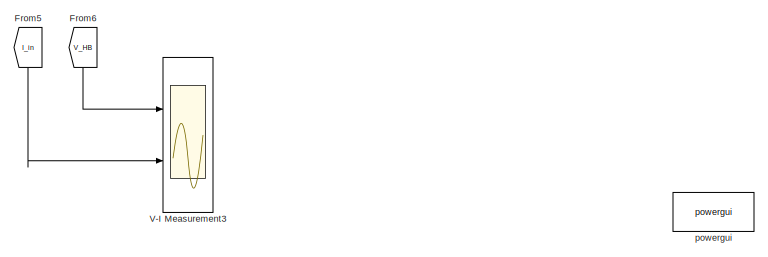
[diagram: root canvas - part 1/6, top center region]
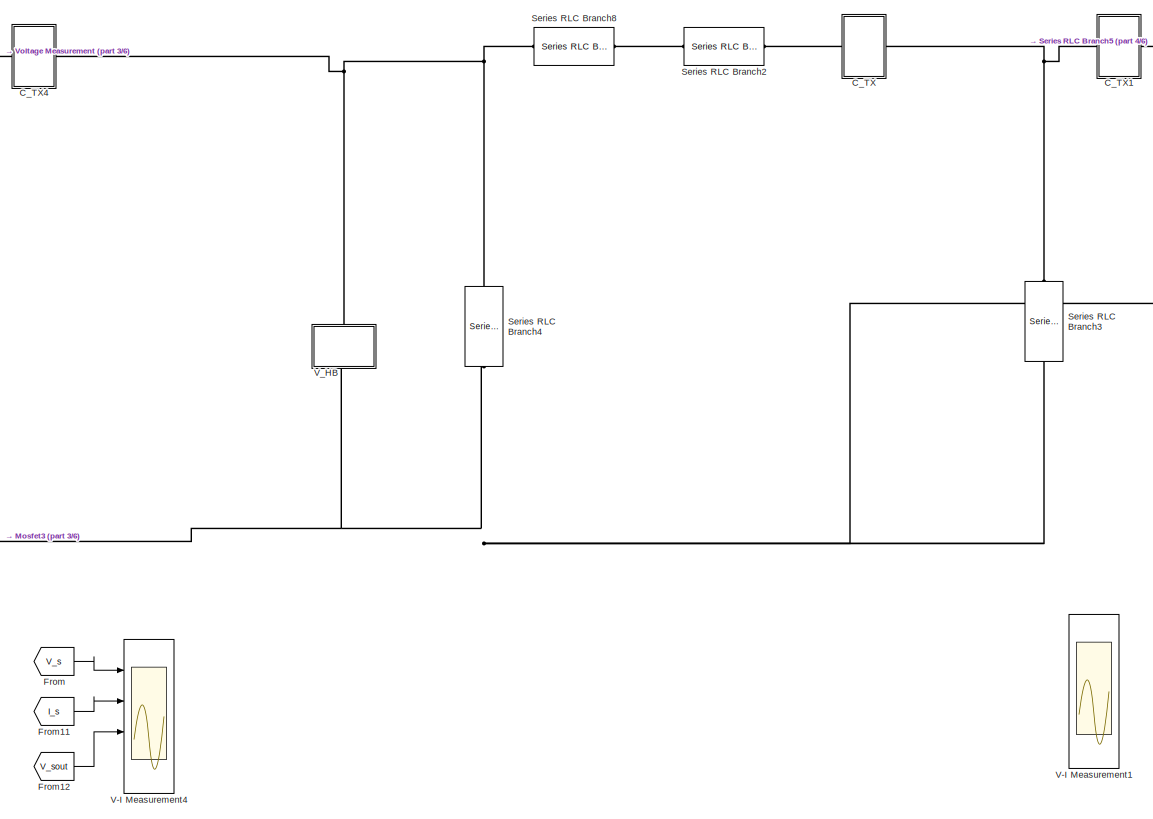
[diagram: root canvas - part 2/6, central region]
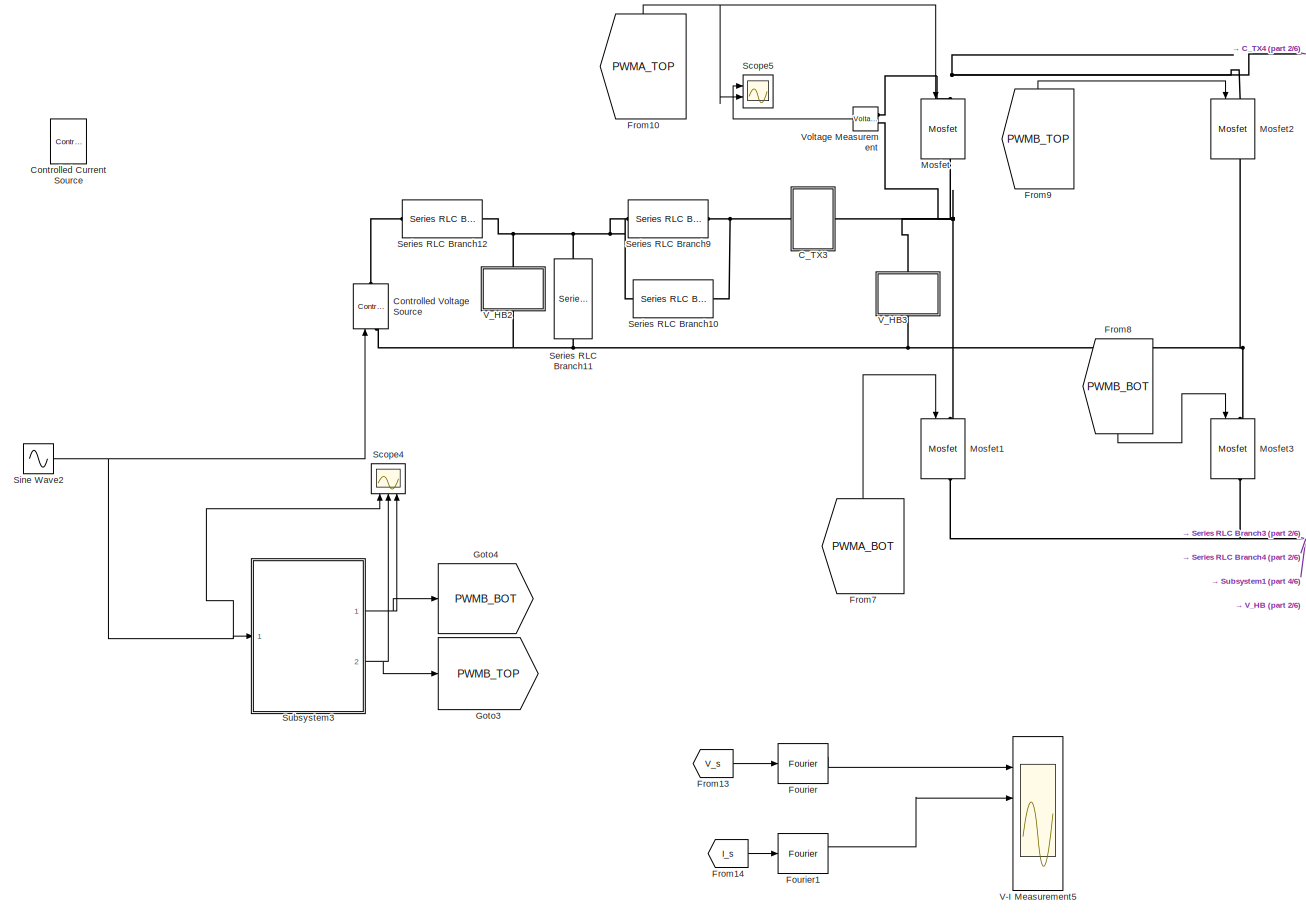
[diagram: root canvas - part 3/6, central region]
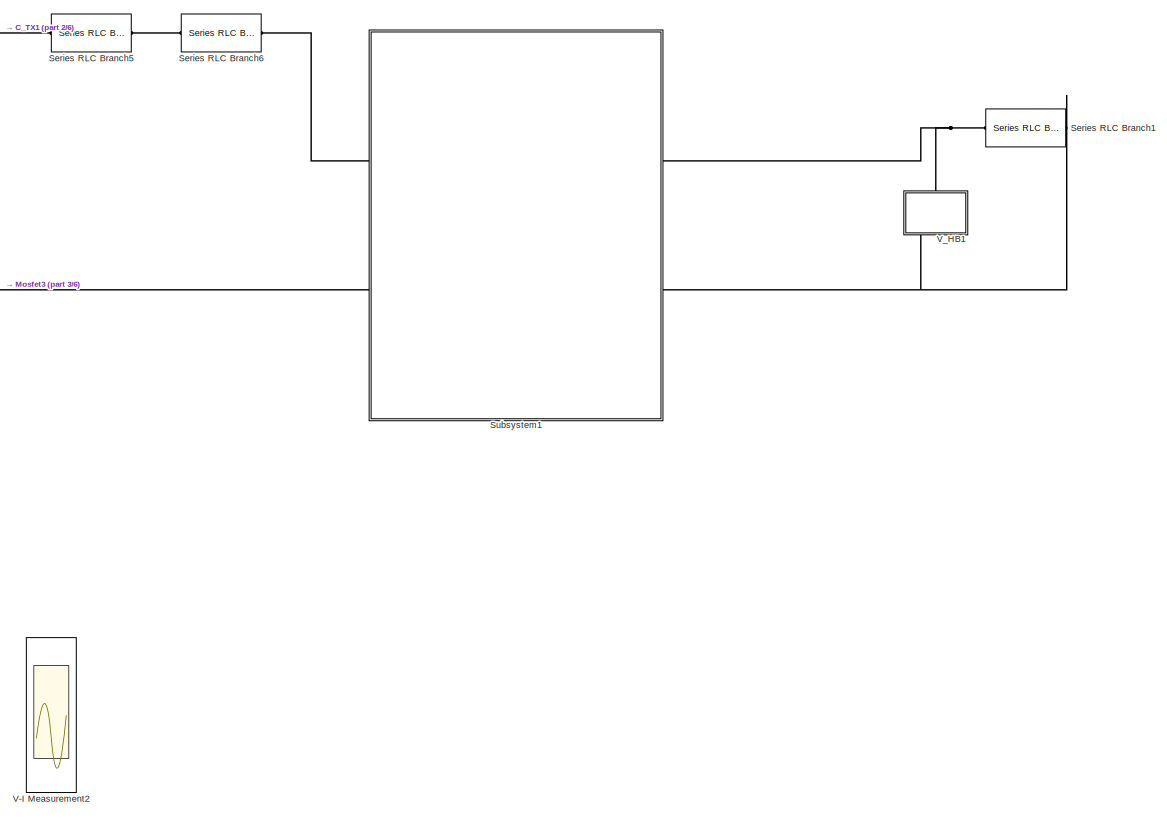
[diagram: root canvas - part 4/6, middle right region]
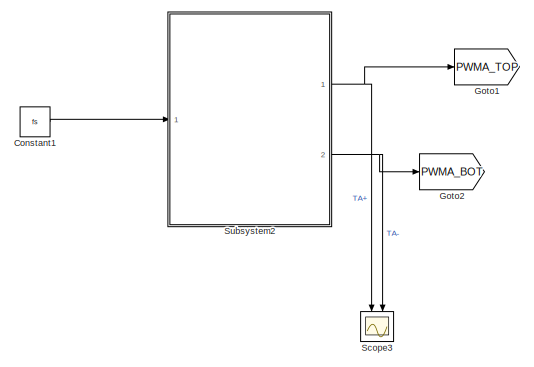
[diagram: root canvas - part 5/6, bottom left region]
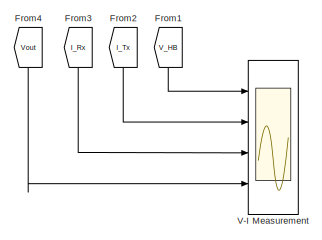
[diagram: root canvas - part 6/6, bottom right region]
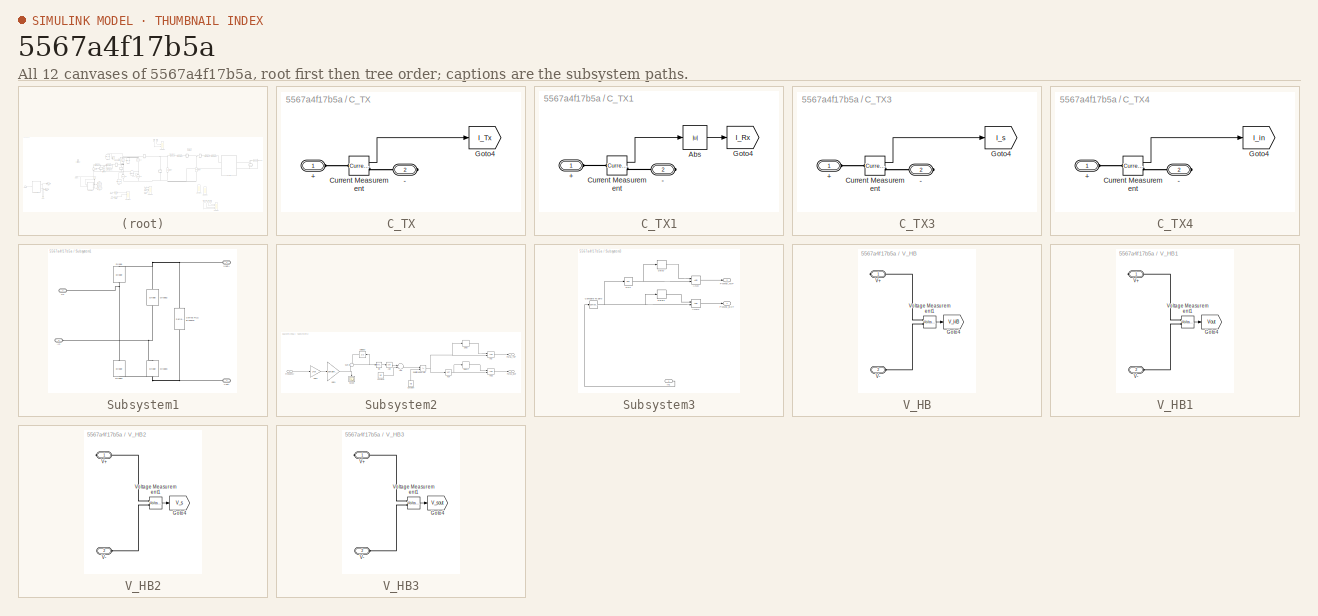
[diagram: thumbnail index - all 12 canvases of the model, root first then tree order]
MODEL slx_5567a4f17b5a
KIND model
CONFIG AbsTol = auto
CONFIG EnableMultiTasking = off
CONFIG FixedStep = sampleTime
CONFIG InitFcn = fs=150e3; %Hz\nwo=2*pi*fs;\nstopTime=0.1;\nsampleTime=1e-8;\ndeadtime= round(((1/fs)/20)/sampleTime);\nVdc=100;\nLp=82e-6; \nLs=66e-6;\nCs=1/ (Ls*4*pi*pi*150e3*150e3);\nCp=1/ (Lp*4*pi*pi*150e3*150e3);\nCp=Cp*5;\nRp=0.3;\nRs=0.2;\nRLOAD=40\nk=0.2;\nM=sqrt(Lp*Ls)*k;\nCout=1e-6; %F\nC2=(Lp-(1/(wo^2*Cp)))/((wo^4*M^4/RLOAD)+(wo^2*(Lp-(1/(wo^2*Cs)))^2))
CONFIG MaxStep = auto
CONFIG MinStep = auto
CONFIG RelTol = 1e-3
CONFIG SampleTimeConstraint = Unconstrained
CONFIG Solver = FixedStepAuto
CONFIG SolverName = FixedStepAuto
CONFIG StartTime = 0.0
CONFIG StopTime = stopTime
BLOCK [SubSystem] C_TX
  Ports = [0, 0, 0, 0, 0, 1, 1]
  RequestExecContextInheritance = off
BLOCK [PMIOPort] C_TX/+
  Side = Left
BLOCK [PMIOPort] C_TX/-
  Port = 2
  Side = Right
BLOCK [Reference] C_TX/Current Measurement  REF=powerlib/Measurements/Current Measurement
  Ports = [0, 1, 0, 0, 0, 1, 1]
  SourceBlock = powerlib/Measurements/Current Measurement
  SourceProductBaseCode = PS
  SourceProductName = Simscape Power Systems
  SourceType = Current Measurement
  UserDataPersistent = on
BLOCK [Goto] C_TX/Goto4
  GotoTag = I_Tx
  TagVisibility = global
BLOCK [SubSystem] C_TX1
  Ports = [0, 0, 0, 0, 0, 1, 1]
  RequestExecContextInheritance = off
BLOCK [PMIOPort] C_TX1/+
  Side = Left
BLOCK [PMIOPort] C_TX1/-
  Port = 2
  Side = Right
BLOCK [Abs] C_TX1/Abs
  SaturateOnIntegerOverflow = off
BLOCK [Reference] C_TX1/Current Measurement  REF=powerlib/Measurements/Current Measurement
  Ports = [0, 1, 0, 0, 0, 1, 1]
  SourceBlock = powerlib/Measurements/Current Measurement
  SourceProductBaseCode = PS
  SourceProductName = Simscape Power Systems
  SourceType = Current Measurement
  UserDataPersistent = on
BLOCK [Goto] C_TX1/Goto4
  GotoTag = I_Rx
  TagVisibility = global
BLOCK [SubSystem] C_TX3
  Ports = [0, 0, 0, 0, 0, 1, 1]
  RequestExecContextInheritance = off
BLOCK [PMIOPort] C_TX3/+
  Side = Left
BLOCK [PMIOPort] C_TX3/-
  Port = 2
  Side = Right
BLOCK [Reference] C_TX3/Current Measurement  REF=powerlib/Measurements/Current Measurement
  Ports = [0, 1, 0, 0, 0, 1, 1]
  SourceBlock = powerlib/Measurements/Current Measurement
  SourceProductBaseCode = PS
  SourceProductName = Simscape Power Systems
  SourceType = Current Measurement
  UserDataPersistent = on
BLOCK [Goto] C_TX3/Goto4
  GotoTag = I_s
  TagVisibility = global
BLOCK [SubSystem] C_TX4
  Ports = [0, 0, 0, 0, 0, 1, 1]
  RequestExecContextInheritance = off
BLOCK [PMIOPort] C_TX4/+
  Side = Left
BLOCK [PMIOPort] C_TX4/-
  Port = 2
  Side = Right
BLOCK [Reference] C_TX4/Current Measurement  REF=powerlib/Measurements/Current Measurement
  Ports = [0, 1, 0, 0, 0, 1, 1]
  SourceBlock = powerlib/Measurements/Current Measurement
  SourceProductBaseCode = PS
  SourceProductName = Simscape Power Systems
  SourceType = Current Measurement
  UserDataPersistent = on
BLOCK [Goto] C_TX4/Goto4
  GotoTag = I_in
  TagVisibility = global
BLOCK [Constant] Constant1
  Value = fs
BLOCK [Reference] Controlled Current Source  REF=powerlib/Electrical
Sources/Controlled Current Source
  Ports = [1, 0, 0, 0, 0, 1, 1]
  SourceBlock = powerlib/Electrical\nSources/Controlled Current Source
  SourceProductBaseCode = PS
  SourceProductName = Simscape Power Systems
  SourceType = Controlled Current Source
BLOCK [Reference] Controlled Voltage Source  REF=powerlib/Electrical
Sources/Controlled Voltage Source
  Ports = [1, 0, 0, 0, 0, 1, 1]
  SourceBlock = powerlib/Electrical\nSources/Controlled Voltage Source
  SourceProductBaseCode = PS
  SourceProductName = Simscape Power Systems
  SourceType = Controlled Voltage Source
BLOCK [Reference] Fourier  REF=powerlib_meascontrol/Measurements/Fourier
  Ports = [1, 2]
  SourceBlock = powerlib_meascontrol/Measurements/Fourier
  SourceProductBaseCode = PS
  SourceProductName = Simscape Power Systems
  SourceType = Fourier
BLOCK [Reference] Fourier1  REF=powerlib_meascontrol/Measurements/Fourier
  Ports = [1, 2]
  SourceBlock = powerlib_meascontrol/Measurements/Fourier
  SourceProductBaseCode = PS
  SourceProductName = Simscape Power Systems
  SourceType = Fourier
BLOCK [From] From
  GotoTag = V_s
  TagVisibility = global
BLOCK [From] From1
  GotoTag = V_HB
  TagVisibility = global
BLOCK [From] From10
  GotoTag = PWMA_TOP
  TagVisibility = global
BLOCK [From] From11
  GotoTag = I_s
  TagVisibility = global
BLOCK [From] From12
  GotoTag = V_sout
  TagVisibility = global
BLOCK [From] From13
  GotoTag = V_s
  TagVisibility = global
BLOCK [From] From14
  GotoTag = I_s
  TagVisibility = global
BLOCK [From] From2
  GotoTag = I_Tx
  TagVisibility = global
BLOCK [From] From3
  GotoTag = I_Rx
  TagVisibility = global
BLOCK [From] From4
  GotoTag = Vout
  TagVisibility = global
BLOCK [From] From5
  GotoTag = I_in
  TagVisibility = global
BLOCK [From] From6
  GotoTag = V_HB
  TagVisibility = global
BLOCK [From] From7
  GotoTag = PWMA_BOT
  TagVisibility = global
BLOCK [From] From8
  GotoTag = PWMB_BOT
BLOCK [From] From9
  GotoTag = PWMB_TOP
BLOCK [Goto] Goto1
  GotoTag = PWMA_TOP
  TagVisibility = global
BLOCK [Goto] Goto2
  GotoTag = PWMA_BOT
  TagVisibility = global
BLOCK [Goto] Goto3
  GotoTag = PWMB_TOP
BLOCK [Goto] Goto4
  GotoTag = PWMB_BOT
BLOCK [Reference] Mosfet  REF=powerlib/Power
Electronics/Mosfet
  Ports = [1, 1, 0, 0, 0, 1, 1]
  SourceBlock = powerlib/Power\nElectronics/Mosfet
  SourceProductBaseCode = PS
  SourceProductName = Simscape Power Systems
  SourceType = Mosfet
BLOCK [Reference] Mosfet1  REF=powerlib/Power
Electronics/Mosfet
  Ports = [1, 1, 0, 0, 0, 1, 1]
  SourceBlock = powerlib/Power\nElectronics/Mosfet
  SourceProductBaseCode = PS
  SourceProductName = Simscape Power Systems
  SourceType = Mosfet
BLOCK [Reference] Mosfet2  REF=powerlib/Power
Electronics/Mosfet
  Ports = [1, 1, 0, 0, 0, 1, 1]
  SourceBlock = powerlib/Power\nElectronics/Mosfet
  SourceProductBaseCode = PS
  SourceProductName = Simscape Power Systems
  SourceType = Mosfet
BLOCK [Reference] Mosfet3  REF=powerlib/Power
Electronics/Mosfet
  Ports = [1, 1, 0, 0, 0, 1, 1]
  SourceBlock = powerlib/Power\nElectronics/Mosfet
  SourceProductBaseCode = PS
  SourceProductName = Simscape Power Systems
  SourceType = Mosfet
BLOCK [Scope] Scope3
  Floating = off
  NumInputPorts = 2
  Ports = [2]
  ScopeSpecificationString = Simulink.scopes.TimeScopeBlockCfg('CurrentConfiguration', extmgr.ConfigurationSet(extmgr.Configuration('Core','General UI',true),extmgr.Configuration('Core','Source UI',true),extmgr.Configuration('Sources','WiredSimulink',true,'DataLoggingVariableName','ScopeData2'),extmgr.Configuration('Visuals','Time Domain',true,'SerializedDisplays',{struct('MinYLimReal','-0.125','MaxYLimReal','1.04761','YLabel...<+1582ch>
BLOCK [Scope] Scope4
  Floating = off
  NumInputPorts = 3
  Ports = [3]
  ScopeSpecificationString = Simulink.scopes.TimeScopeBlockCfg('CurrentConfiguration', extmgr.ConfigurationSet(extmgr.Configuration('Core','General UI',true),extmgr.Configuration('Core','Source UI',true),extmgr.Configuration('Sources','WiredSimulink',true,'DataLoggingVariableName','ScopeData3'),extmgr.Configuration('Visuals','Time Domain',true,'SerializedDisplays',{struct('MinYLimReal','-6.25','MaxYLimReal','6.25','YLabelReal...<+1599ch>
BLOCK [Scope] Scope5
  Floating = off
  NumInputPorts = 2
  Ports = [2]
  ScopeSpecificationString = Simulink.scopes.TimeScopeBlockCfg('CurrentConfiguration', extmgr.ConfigurationSet(extmgr.Configuration('Core','General UI',true),extmgr.Configuration('Core','Source UI',true),extmgr.Configuration('Sources','WiredSimulink',true,'DataLoggingVariableName','ScopeData4'),extmgr.Configuration('Visuals','Time Domain',true,'SerializedDisplays',{struct('MinYLimReal','-134.53785','MaxYLimReal','160.49588','...<+2192ch>
BLOCK [Reference] Series RLC Branch1  REF=powerlib/Elements/Series RLC Branch
  Ports = [0, 0, 0, 0, 0, 1, 1]
  SourceBlock = powerlib/Elements/Series RLC Branch
  SourceProductBaseCode = PS
  SourceProductName = Simscape Power Systems
  SourceType = Series RLC Branch
BLOCK [Reference] Series RLC Branch10  REF=powerlib/Elements/Series RLC Branch
  Ports = [0, 0, 0, 0, 0, 1, 1]
  SourceBlock = powerlib/Elements/Series RLC Branch
  SourceProductBaseCode = PS
  SourceProductName = Simscape Power Systems
  SourceType = Series RLC Branch
BLOCK [Reference] Series RLC Branch11  REF=powerlib/Elements/Series RLC Branch
  Ports = [0, 0, 0, 0, 0, 1, 1]
  SourceBlock = powerlib/Elements/Series RLC Branch
  SourceProductBaseCode = PS
  SourceProductName = Simscape Power Systems
  SourceType = Series RLC Branch
BLOCK [Reference] Series RLC Branch12  REF=powerlib/Elements/Series RLC Branch
  Ports = [0, 0, 0, 0, 0, 1, 1]
  SourceBlock = powerlib/Elements/Series RLC Branch
  SourceProductBaseCode = PS
  SourceProductName = Simscape Power Systems
  SourceType = Series RLC Branch
BLOCK [Reference] Series RLC Branch2  REF=powerlib/Elements/Series RLC Branch
  Ports = [0, 0, 0, 0, 0, 1, 1]
  SourceBlock = powerlib/Elements/Series RLC Branch
  SourceProductBaseCode = PS
  SourceProductName = Simscape Power Systems
  SourceType = Series RLC Branch
BLOCK [Reference] Series RLC Branch3  REF=powerlib/Elements/Series RLC Branch
  Ports = [0, 0, 0, 0, 0, 1, 1]
  SourceBlock = powerlib/Elements/Series RLC Branch
  SourceProductBaseCode = PS
  SourceProductName = Simscape Power Systems
  SourceType = Series RLC Branch
BLOCK [Reference] Series RLC Branch4  REF=powerlib/Elements/Series RLC Branch
  Ports = [0, 0, 0, 0, 0, 1, 1]
  SourceBlock = powerlib/Elements/Series RLC Branch
  SourceProductBaseCode = PS
  SourceProductName = Simscape Power Systems
  SourceType = Series RLC Branch
BLOCK [Reference] Series RLC Branch5  REF=powerlib/Elements/Series RLC Branch
  Ports = [0, 0, 0, 0, 0, 1, 1]
  SourceBlock = powerlib/Elements/Series RLC Branch
  SourceProductBaseCode = PS
  SourceProductName = Simscape Power Systems
  SourceType = Series RLC Branch
BLOCK [Reference] Series RLC Branch6  REF=powerlib/Elements/Series RLC Branch
  Ports = [0, 0, 0, 0, 0, 1, 1]
  SourceBlock = powerlib/Elements/Series RLC Branch
  SourceProductBaseCode = PS
  SourceProductName = Simscape Power Systems
  SourceType = Series RLC Branch
BLOCK [Reference] Series RLC Branch8  REF=powerlib/Elements/Series RLC Branch
  Ports = [0, 0, 0, 0, 0, 1, 1]
  SourceBlock = powerlib/Elements/Series RLC Branch
  SourceProductBaseCode = PS
  SourceProductName = Simscape Power Systems
  SourceType = Series RLC Branch
BLOCK [Reference] Series RLC Branch9  REF=powerlib/Elements/Series RLC Branch
  Ports = [0, 0, 0, 0, 0, 1, 1]
  SourceBlock = powerlib/Elements/Series RLC Branch
  SourceProductBaseCode = PS
  SourceProductName = Simscape Power Systems
  SourceType = Series RLC Branch
BLOCK [Sin] Sine Wave2
  Amplitude = 50
  Frequency = 2*pi*50
  Ports = [0, 1]
  SampleTime = 0
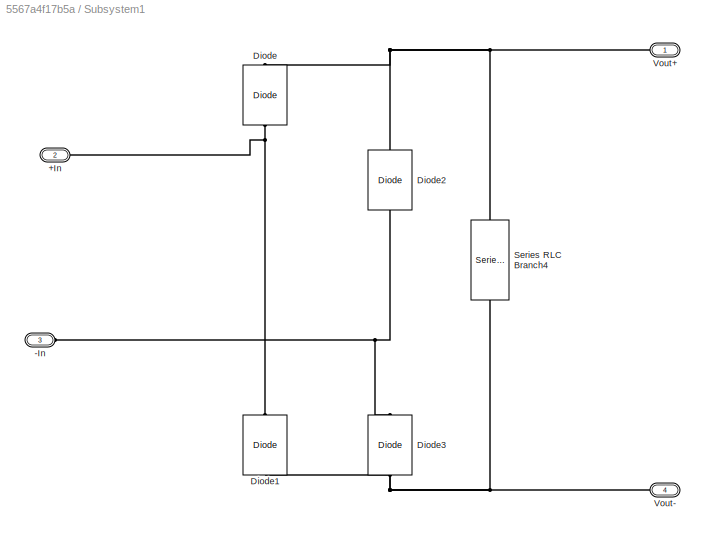
BLOCK [SubSystem] Subsystem1
  Ports = [0, 0, 0, 0, 0, 2, 2]
  RequestExecContextInheritance = off
BLOCK [PMIOPort] Subsystem1/+In
  Port = 2
  Side = Left
BLOCK [PMIOPort] Subsystem1/-In
  Port = 3
  Side = Left
BLOCK [Reference] Subsystem1/Diode  REF=powerlib/Power
Electronics/Diode
  Ports = [0, 0, 0, 0, 0, 1, 1]
  SourceBlock = powerlib/Power\nElectronics/Diode
  SourceProductBaseCode = PS
  SourceProductName = Simscape Power Systems
  SourceType = Diode
BLOCK [Reference] Subsystem1/Diode1  REF=powerlib/Power
Electronics/Diode
  Ports = [0, 0, 0, 0, 0, 1, 1]
  SourceBlock = powerlib/Power\nElectronics/Diode
  SourceProductBaseCode = PS
  SourceProductName = Simscape Power Systems
  SourceType = Diode
BLOCK [Reference] Subsystem1/Diode2  REF=powerlib/Power
Electronics/Diode
  Ports = [0, 0, 0, 0, 0, 1, 1]
  SourceBlock = powerlib/Power\nElectronics/Diode
  SourceProductBaseCode = PS
  SourceProductName = Simscape Power Systems
  SourceType = Diode
BLOCK [Reference] Subsystem1/Diode3  REF=powerlib/Power
Electronics/Diode
  Ports = [0, 0, 0, 0, 0, 1, 1]
  SourceBlock = powerlib/Power\nElectronics/Diode
  SourceProductBaseCode = PS
  SourceProductName = Simscape Power Systems
  SourceType = Diode
BLOCK [Reference] Subsystem1/Series RLC Branch4  REF=powerlib/Elements/Series RLC Branch
  Ports = [0, 0, 0, 0, 0, 1, 1]
  SourceBlock = powerlib/Elements/Series RLC Branch
  SourceProductBaseCode = PS
  SourceProductName = Simscape Power Systems
  SourceType = Series RLC Branch
BLOCK [PMIOPort] Subsystem1/Vout+
  Side = Right
BLOCK [PMIOPort] Subsystem1/Vout-
  Port = 4
  Side = Right
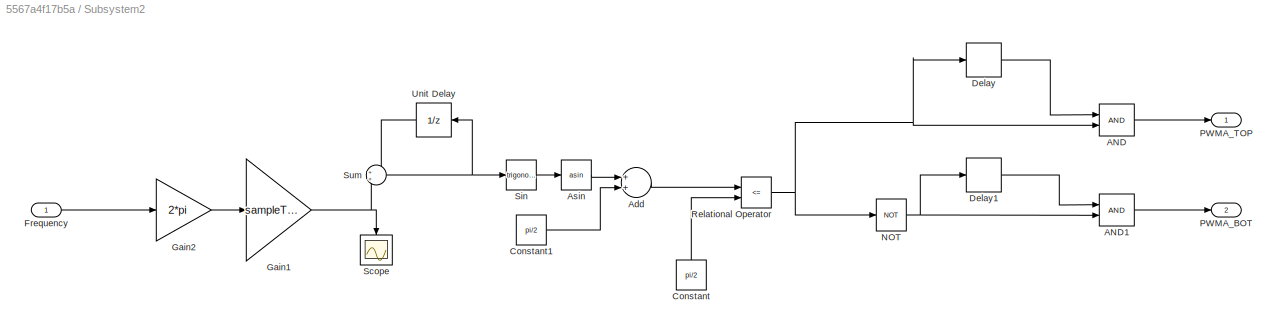
BLOCK [SubSystem] Subsystem2
  Ports = [1, 2]
  RequestExecContextInheritance = off
BLOCK [Logic] Subsystem2/AND
  AllPortsSameDT = off
  IconShape = distinctive
  OutDataTypeStr = boolean
  Ports = [2, 1]
BLOCK [Logic] Subsystem2/AND1
  AllPortsSameDT = off
  IconShape = distinctive
  OutDataTypeStr = boolean
  Ports = [2, 1]
BLOCK [Sum] Subsystem2/Add
  InputSameDT = off
  OutDataTypeStr = Inherit: Inherit via internal rule
  Ports = [2, 1]
  SaturateOnIntegerOverflow = off
BLOCK [Trigonometry] Subsystem2/Asin
  Operator = asin
  Ports = [1, 1]
BLOCK [Constant] Subsystem2/Constant
  Value = pi/2
BLOCK [Constant] Subsystem2/Constant1
  Value = pi/2
BLOCK [Delay] Subsystem2/Delay
  DelayLength = deadtime
  InputPortMap = u0
  Ports = [1, 1]
BLOCK [Delay] Subsystem2/Delay1
  DelayLength = deadtime
  InputPortMap = u0
  Ports = [1, 1]
BLOCK [Inport] Subsystem2/Frequency
  IconDisplay = Port number
BLOCK [Gain] Subsystem2/Gain1
  Gain = sampleTime
  OutDataTypeStr = Inherit: Inherit via internal rule
  ParamDataTypeStr = Inherit: Inherit via internal rule
  SaturateOnIntegerOverflow = off
BLOCK [Gain] Subsystem2/Gain2
  Gain = 2*pi
  OutDataTypeStr = Inherit: Inherit via internal rule
  ParamDataTypeStr = Inherit: Inherit via internal rule
  SaturateOnIntegerOverflow = off
BLOCK [Logic] Subsystem2/NOT
  AllPortsSameDT = off
  IconShape = distinctive
  Operator = NOT
  OutDataTypeStr = boolean
  Ports = [1, 1]
BLOCK [Outport] Subsystem2/PWMA_BOT
  IconDisplay = Port number
  Port = 2
BLOCK [Outport] Subsystem2/PWMA_TOP
  IconDisplay = Port number
BLOCK [RelationalOperator] Subsystem2/Relational Operator
  InputSameDT = off
  Operator = <=
  OutDataTypeStr = boolean
  Ports = [2, 1]
  RndMeth = Simplest
BLOCK [Scope] Subsystem2/Scope
  Floating = off
  NumInputPorts = 1
  Ports = [1]
  ScopeSpecificationString = Simulink.scopes.TimeScopeBlockCfg('CurrentConfiguration', extmgr.ConfigurationSet(extmgr.Configuration('Core','General UI',true),extmgr.Configuration('Core','Source UI',true),extmgr.Configuration('Sources','WiredSimulink',true),extmgr.Configuration('Visuals','Time Domain',true),extmgr.Configuration('Tools','Plot Navigation',true),extmgr.Configuration('Tools','Measurements',true)),'Version','2018a'...<+1ch>
BLOCK [Trigonometry] Subsystem2/Sin
  Ports = [1, 1]
BLOCK [Sum] Subsystem2/Sum
  IconShape = round
  InputSameDT = off
  OutDataTypeStr = Inherit: Inherit via internal rule
  Ports = [2, 1]
  SaturateOnIntegerOverflow = off
BLOCK [UnitDelay] Subsystem2/Unit Delay
  InputProcessing = Elements as channels (sample based)
  SampleTime = -1
BLOCK [SubSystem] Subsystem3
  Ports = [1, 2]
  RequestExecContextInheritance = off
BLOCK [Logic] Subsystem3/AND
  AllPortsSameDT = off
  IconShape = distinctive
  OutDataTypeStr = boolean
  Ports = [2, 1]
BLOCK [Logic] Subsystem3/AND1
  AllPortsSameDT = off
  IconShape = distinctive
  OutDataTypeStr = boolean
  Ports = [2, 1]
BLOCK [Reference] Subsystem3/Compare To Zero  REF=simulink/Logic and Bit
Operations/Compare
To Zero
  Ports = [1, 1]
  SourceBlock = simulink/Logic and Bit\nOperations/Compare\nTo Zero
  SourceProductBaseCode = SL
  SourceProductName = Simulink
  SourceType = Compare To Zero
BLOCK [Delay] Subsystem3/Delay
  DelayLength = deadtime
  InputPortMap = u0
  Ports = [1, 1]
BLOCK [Delay] Subsystem3/Delay1
  DelayLength = deadtime
  InputPortMap = u0
  Ports = [1, 1]
BLOCK [Inport] Subsystem3/In1
  IconDisplay = Port number
BLOCK [Logic] Subsystem3/NOT
  AllPortsSameDT = off
  IconShape = distinctive
  Operator = NOT
  OutDataTypeStr = boolean
  Ports = [1, 1]
BLOCK [Outport] Subsystem3/PWMB_BOT
  IconDisplay = Port number
BLOCK [Outport] Subsystem3/PWMB_TOP
  IconDisplay = Port number
  Port = 2
BLOCK [Scope] V-I Measurement
  Floating = off
  NumInputPorts = 4
  Ports = [4]
  ScopeSpecificationString = Simulink.scopes.TimeScopeBlockCfg('CurrentConfiguration', extmgr.ConfigurationSet(extmgr.Configuration('Core','General UI',true,'FigureColor',[0.831372549019608 0.815686274509804 0.784313725490196]),extmgr.Configuration('Core','Source UI',true),extmgr.Configuration('Sources','WiredSimulink',true,'DataLoggingVariableName','ScopeData2','DataLogging',true),extmgr.Configuration('Visuals','Time Domain'...<+4148ch>
BLOCK [Scope] V-I Measurement1
  Floating = off
  NumInputPorts = 4
  Ports = [4]
  ScopeSpecificationString = Simulink.scopes.TimeScopeBlockCfg('CurrentConfiguration', extmgr.ConfigurationSet(extmgr.Configuration('Core','General UI',true,'FigureColor',[0.831372549019608 0.815686274509804 0.784313725490196]),extmgr.Configuration('Core','Source UI',true),extmgr.Configuration('Sources','WiredSimulink',true,'DataLoggingVariableName','ScopeData4'),extmgr.Configuration('Visuals','Time Domain',true,'SerializedDi...<+4390ch>
BLOCK [Scope] V-I Measurement2
  Floating = off
  NumInputPorts = 2
  Ports = [2]
  ScopeSpecificationString = Simulink.scopes.TimeScopeBlockCfg('CurrentConfiguration', extmgr.ConfigurationSet(extmgr.Configuration('Core','General UI',true,'FigureColor',[0.831372549019608 0.815686274509804 0.784313725490196]),extmgr.Configuration('Core','Source UI',true),extmgr.Configuration('Sources','WiredSimulink',true,'DataLoggingVariableName','ScopeData5'),extmgr.Configuration('Visuals','Time Domain',true,'SerializedDi...<+2117ch>
BLOCK [Scope] V-I Measurement3
  Floating = off
  NumInputPorts = 2
  Ports = [2]
  ScopeSpecificationString = Simulink.scopes.TimeScopeBlockCfg('CurrentConfiguration', extmgr.ConfigurationSet(extmgr.Configuration('Core','General UI',true,'FigureColor',[0.831372549019608 0.815686274509804 0.784313725490196]),extmgr.Configuration('Core','Source UI',true),extmgr.Configuration('Sources','WiredSimulink',true,'DataLoggingVariableName','ScopeData1','DataLogging',true),extmgr.Configuration('Visuals','Time Domain'...<+4100ch>
BLOCK [Scope] V-I Measurement4
  Floating = off
  NumInputPorts = 4
  Ports = [4]
  ScopeSpecificationString = Simulink.scopes.TimeScopeBlockCfg('CurrentConfiguration', extmgr.ConfigurationSet(extmgr.Configuration('Core','General UI',true,'FigureColor',[0.831372549019608 0.815686274509804 0.784313725490196]),extmgr.Configuration('Core','Source UI',true),extmgr.Configuration('Sources','WiredSimulink',true,'DataLoggingVariableName','ScopeData5','DataLogging',true),extmgr.Configuration('Visuals','Time Domain'...<+4156ch>
BLOCK [Scope] V-I Measurement5
  Floating = off
  NumInputPorts = 4
  Ports = [4]
  ScopeSpecificationString = Simulink.scopes.TimeScopeBlockCfg('CurrentConfiguration', extmgr.ConfigurationSet(extmgr.Configuration('Core','General UI',true,'FigureColor',[0.831372549019608 0.815686274509804 0.784313725490196]),extmgr.Configuration('Core','Source UI',true),extmgr.Configuration('Sources','WiredSimulink',true,'DataLoggingVariableName','aa'),extmgr.Configuration('Visuals','Time Domain',true,'SerializedDisplays',...<+4069ch>
BLOCK [SubSystem] V_HB
  Ports = [0, 0, 0, 0, 0, 1, 1]
  RequestExecContextInheritance = off
BLOCK [Goto] V_HB/Goto4
  GotoTag = V_HB
  TagVisibility = global
BLOCK [PMIOPort] V_HB/V+
  Side = Right
BLOCK [PMIOPort] V_HB/V-
  Port = 2
  Side = Left
BLOCK [Reference] V_HB/Voltage Measurement1  REF=powerlib/Measurements/Voltage Measurement
  Ports = [0, 1, 0, 0, 0, 2]
  SourceBlock = powerlib/Measurements/Voltage Measurement
  SourceProductBaseCode = PS
  SourceProductName = Simscape Power Systems
  SourceType = Voltage Measurement
  UserDataPersistent = on
BLOCK [SubSystem] V_HB1
  Ports = [0, 0, 0, 0, 0, 1, 1]
  RequestExecContextInheritance = off
BLOCK [Goto] V_HB1/Goto4
  GotoTag = Vout
  TagVisibility = global
BLOCK [PMIOPort] V_HB1/V+
  Side = Right
BLOCK [PMIOPort] V_HB1/V-
  Port = 2
  Side = Left
BLOCK [Reference] V_HB1/Voltage Measurement1  REF=powerlib/Measurements/Voltage Measurement
  Ports = [0, 1, 0, 0, 0, 2]
  SourceBlock = powerlib/Measurements/Voltage Measurement
  SourceProductBaseCode = PS
  SourceProductName = Simscape Power Systems
  SourceType = Voltage Measurement
  UserDataPersistent = on
BLOCK [SubSystem] V_HB2
  Ports = [0, 0, 0, 0, 0, 1, 1]
  RequestExecContextInheritance = off
BLOCK [Goto] V_HB2/Goto4
  GotoTag = V_s
  TagVisibility = global
BLOCK [PMIOPort] V_HB2/V+
  Side = Right
BLOCK [PMIOPort] V_HB2/V-
  Port = 2
  Side = Left
BLOCK [Reference] V_HB2/Voltage Measurement1  REF=powerlib/Measurements/Voltage Measurement
  Ports = [0, 1, 0, 0, 0, 2]
  SourceBlock = powerlib/Measurements/Voltage Measurement
  SourceProductBaseCode = PS
  SourceProductName = Simscape Power Systems
  SourceType = Voltage Measurement
  UserDataPersistent = on
BLOCK [SubSystem] V_HB3
  Ports = [0, 0, 0, 0, 0, 1, 1]
  RequestExecContextInheritance = off
BLOCK [Goto] V_HB3/Goto4
  GotoTag = V_sout
  TagVisibility = global
BLOCK [PMIOPort] V_HB3/V+
  Side = Right
BLOCK [PMIOPort] V_HB3/V-
  Port = 2
  Side = Left
BLOCK [Reference] V_HB3/Voltage Measurement1  REF=powerlib/Measurements/Voltage Measurement
  Ports = [0, 1, 0, 0, 0, 2]
  SourceBlock = powerlib/Measurements/Voltage Measurement
  SourceProductBaseCode = PS
  SourceProductName = Simscape Power Systems
  SourceType = Voltage Measurement
  UserDataPersistent = on
BLOCK [Reference] Voltage Measurement  REF=powerlib/Measurements/Voltage Measurement
  Ports = [0, 1, 0, 0, 0, 2]
  SourceBlock = powerlib/Measurements/Voltage Measurement
  SourceProductBaseCode = PS
  SourceProductName = Simscape Power Systems
  SourceType = Voltage Measurement
  UserDataPersistent = on
BLOCK [Reference] powergui  REF=powerlib/powergui
  Ports = []
  Priority = 1
  SourceBlock = powerlib/powergui
  SourceProductBaseCode = PS
  SourceProductName = Simscape Power Systems
  SourceType = PSB option menu block
LINE C_TX/Current Measurement:1 -> C_TX/Goto4:1
LINE C_TX1/Abs:1 -> C_TX1/Goto4:1
LINE C_TX1/Current Measurement:1 -> C_TX1/Abs:1
LINE C_TX3/Current Measurement:1 -> C_TX3/Goto4:1
LINE C_TX4/Current Measurement:1 -> C_TX4/Goto4:1
LINE Constant1:1 -> Subsystem2:1
LINE Fourier1:1 -> V-I Measurement5:2
LINE Fourier:1 -> V-I Measurement5:1
NET From10:1 -> Mosfet:1, Scope5:2
LINE From11:1 -> V-I Measurement4:2
LINE From12:1 -> V-I Measurement4:3
LINE From13:1 -> Fourier:1
LINE From14:1 -> Fourier1:1
LINE From1:1 -> V-I Measurement:1
LINE From2:1 -> V-I Measurement:2
LINE From3:1 -> V-I Measurement:3
LINE From4:1 -> V-I Measurement:4
LINE From5:1 -> V-I Measurement3:2
LINE From6:1 -> V-I Measurement3:1
LINE From7:1 -> Mosfet1:1
LINE From8:1 -> Mosfet3:1
LINE From9:1 -> Mosfet2:1
LINE From:1 -> V-I Measurement4:1
NET Sine Wave2:1 -> Controlled Voltage Source:1, Scope4:1, Subsystem3:1
LINE Subsystem2/AND1:1 -> Subsystem2/PWMA_BOT:1
LINE Subsystem2/AND:1 -> Subsystem2/PWMA_TOP:1
LINE Subsystem2/Add:1 -> Subsystem2/Relational Operator:1
LINE Subsystem2/Asin:1 -> Subsystem2/Add:1
LINE Subsystem2/Constant1:1 -> Subsystem2/Add:2
LINE Subsystem2/Constant:1 -> Subsystem2/Relational Operator:2
LINE Subsystem2/Delay1:1 -> Subsystem2/AND1:1
LINE Subsystem2/Delay:1 -> Subsystem2/AND:1
LINE Subsystem2/Frequency:1 -> Subsystem2/Gain2:1
NET Subsystem2/Gain1:1 -> Subsystem2/Scope:1, Subsystem2/Sum:2
LINE Subsystem2/Gain2:1 -> Subsystem2/Gain1:1
NET Subsystem2/NOT:1 -> Subsystem2/AND1:2, Subsystem2/Delay1:1
NET Subsystem2/Relational Operator:1 -> Subsystem2/AND:2, Subsystem2/Delay:1, Subsystem2/NOT:1
LINE Subsystem2/Sin:1 -> Subsystem2/Asin:1
NET Subsystem2/Sum:1 -> Subsystem2/Sin:1, Subsystem2/Unit Delay:1
LINE Subsystem2/Unit Delay:1 -> Subsystem2/Sum:1
NET Subsystem2:1 -> Goto1:1, Scope3:1
NET Subsystem2:2 -> Goto2:1, Scope3:2
LINE Subsystem3/AND1:1 -> Subsystem3/PWMB_BOT:1
LINE Subsystem3/AND:1 -> Subsystem3/PWMB_TOP:1
NET Subsystem3/Compare To Zero:1 -> Subsystem3/AND1:2, Subsystem3/Delay1:1, Subsystem3/NOT:1
LINE Subsystem3/Delay1:1 -> Subsystem3/AND1:1
LINE Subsystem3/Delay:1 -> Subsystem3/AND:1
LINE Subsystem3/In1:1 -> Subsystem3/Compare To Zero:1
NET Subsystem3/NOT:1 -> Subsystem3/AND:2, Subsystem3/Delay:1
NET Subsystem3:1 -> Goto4:1, Scope4:3
NET Subsystem3:2 -> Goto3:1, Scope4:2
LINE V_HB/Voltage Measurement1:1 -> V_HB/Goto4:1
LINE V_HB1/Voltage Measurement1:1 -> V_HB1/Goto4:1
LINE V_HB2/Voltage Measurement1:1 -> V_HB2/Goto4:1
LINE V_HB3/Voltage Measurement1:1 -> V_HB3/Goto4:1
LINE Voltage Measurement:1 -> Scope5:1
PLINE C_TX/+:RConn1 -- C_TX/Current Measurement:LConn1
PLINE C_TX/-:RConn1 -- C_TX/Current Measurement:RConn1
PLINE C_TX1/+:RConn1 -- C_TX1/Current Measurement:LConn1
PLINE C_TX1/-:RConn1 -- C_TX1/Current Measurement:RConn1
PNET net1: C_TX1:LConn1 -- C_TX:RConn1 -- Series RLC Branch3:LConn1
PLINE C_TX1:RConn1 -- Series RLC Branch5:LConn1
PLINE C_TX3/+:RConn1 -- C_TX3/Current Measurement:LConn1
PLINE C_TX3/-:RConn1 -- C_TX3/Current Measurement:RConn1
PNET net2: C_TX3:LConn1 -- Series RLC Branch10:RConn1 -- Series RLC Branch9:RConn1
PNET net3: C_TX3:RConn1 -- Mosfet1:LConn1 -- Mosfet:RConn1 -- V_HB3:RConn1 -- Voltage Measurement:LConn2
PLINE C_TX4/+:RConn1 -- C_TX4/Current Measurement:LConn1
PLINE C_TX4/-:RConn1 -- C_TX4/Current Measurement:RConn1
PNET net4: C_TX4:LConn1 -- Mosfet2:LConn1 -- Mosfet:LConn1 -- Voltage Measurement:LConn1
PNET net5: C_TX4:RConn1 -- Series RLC Branch4:LConn1 -- Series RLC Branch8:RConn1 -- V_HB:RConn1
PLINE C_TX:LConn1 -- Series RLC Branch2:RConn1
PNET net6: Controlled Voltage Source:LConn1 -- Mosfet2:RConn1 -- Mosfet3:LConn1 -- Series RLC Branch11:RConn1 -- V_HB2:LConn1 -- V_HB3:LConn1
PLINE Controlled Voltage Source:RConn1 -- Series RLC Branch12:LConn1
PNET net7: Mosfet1:RConn1 -- Mosfet3:RConn1 -- Series RLC Branch3:RConn1 -- Series RLC Branch4:RConn1 -- Subsystem1:LConn2 -- V_HB:LConn1
PNET net8: Series RLC Branch10:LConn1 -- Series RLC Branch11:LConn1 -- Series RLC Branch12:RConn1 -- Series RLC Branch9:LConn1 -- V_HB2:RConn1
PNET net9: Series RLC Branch1:LConn1 -- Subsystem1:RConn2 -- V_HB1:LConn1
PNET net10: Series RLC Branch1:RConn1 -- Subsystem1:RConn1 -- V_HB1:RConn1
PLINE Series RLC Branch2:LConn1 -- Series RLC Branch8:LConn1
PLINE Series RLC Branch5:RConn1 -- Series RLC Branch6:LConn1
PLINE Series RLC Branch6:RConn1 -- Subsystem1:LConn1
PNET net11: Subsystem1/+In:RConn1 -- Subsystem1/Diode1:RConn1 -- Subsystem1/Diode:LConn1
PNET net12: Subsystem1/-In:RConn1 -- Subsystem1/Diode2:LConn1 -- Subsystem1/Diode3:RConn1
PNET net13: Subsystem1/Diode1:LConn1 -- Subsystem1/Diode3:LConn1 -- Subsystem1/Series RLC Branch4:RConn1 -- Subsystem1/Vout-:RConn1
PNET net14: Subsystem1/Diode2:RConn1 -- Subsystem1/Diode:RConn1 -- Subsystem1/Series RLC Branch4:LConn1 -- Subsystem1/Vout+:RConn1
PLINE V_HB/V+:RConn1 -- V_HB/Voltage Measurement1:LConn1
PLINE V_HB/V-:RConn1 -- V_HB/Voltage Measurement1:LConn2
PLINE V_HB1/V+:RConn1 -- V_HB1/Voltage Measurement1:LConn1
PLINE V_HB1/V-:RConn1 -- V_HB1/Voltage Measurement1:LConn2
PLINE V_HB2/V+:RConn1 -- V_HB2/Voltage Measurement1:LConn1
PLINE V_HB2/V-:RConn1 -- V_HB2/Voltage Measurement1:LConn2
PLINE V_HB3/V+:RConn1 -- V_HB3/Voltage Measurement1:LConn1
PLINE V_HB3/V-:RConn1 -- V_HB3/Voltage Measurement1:LConn2
note: NET lines group one-source signal fan-out (src -> all destinations, sorted); 1:1 wires keep LINE; PNET lines group multi-terminal physical nets as a canonical sorted terminal list (undirected conserving connections); 2-terminal nets keep the pairwise PLINE form
